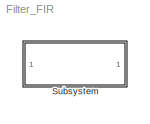
MODEL Filter_FIR
KIND model
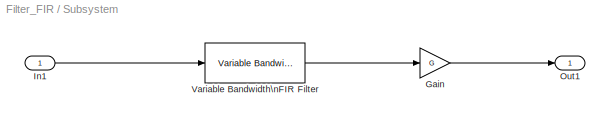
BLOCK [SubSystem] Subsystem
  Ports = [1, 1]
  RequestExecContextInheritance = off
  SID = 9
BLOCK [Gain] Subsystem/Gain
  Gain = G
  OutDataTypeStr = Inherit: Inherit via internal rule
  ParamDataTypeStr = Inherit: Inherit via internal rule
  SID = 23
  SaturateOnIntegerOverflow = off
BLOCK [Inport] Subsystem/In1
  IconDisplay = Port number
  OutDataTypeStr = double
  SID = 10
BLOCK [Outport] Subsystem/Out1
  IconDisplay = Port number
  SID = 11
BLOCK [Reference] Subsystem/Variable Bandwidth\nFIR Filter  REF=dspfdesign/Variable Bandwidth\nFIR Filter
  Bandwidth = 1000
  BandwidthPort = off
  CenterFrequency = 3500
  CenterFrequencyPort = off
  CutoffFrequency = 512
  CutoffFrequencyPort = off
  FilterOrder = 30
  FilterType = Bandpass
  InheritSampleRate = off
  KaiserWindowParameter = .5
  Ports = [1, 1]
  SID = 13
  SampleRate = Fs
  SidelobeAttenuation = 60
  SimulateUsing = Code generation
  SourceBlock = dspfdesign/Variable Bandwidth\nFIR Filter
  SourceProductBaseCode = DS
  SourceProductName = DSP System Toolbox
  SourceType = dsp.simulink.VariableBandwidthFIRFilter
  Window = Hamming
LINE Subsystem/Gain:1 -> Subsystem/Out1:1
LINE Subsystem/In1:1 -> Subsystem/Variable Bandwidth\nFIR Filter:1
LINE Subsystem/Variable Bandwidth\nFIR Filter:1 -> Subsystem/Gain:1
